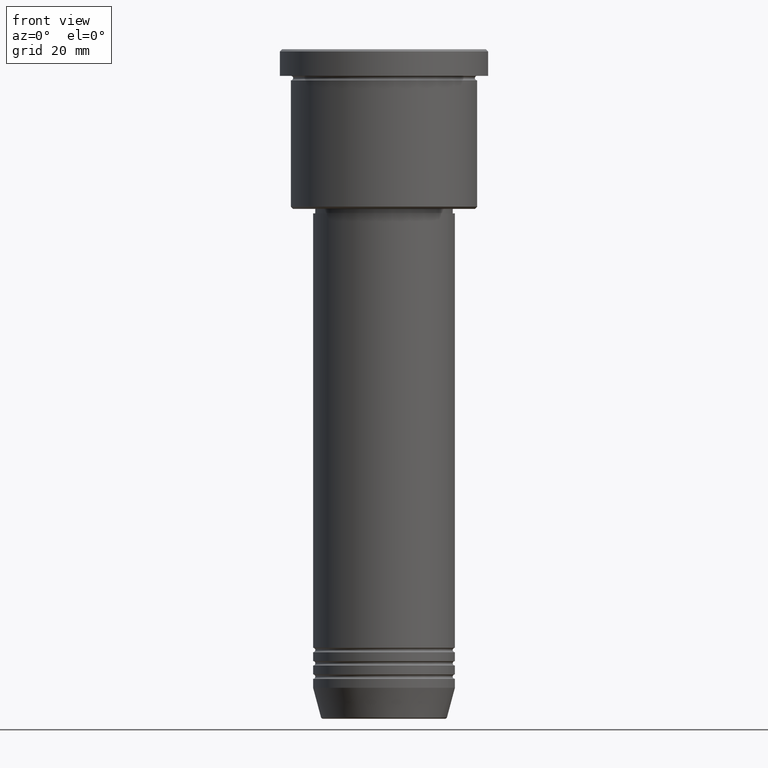
[diagram: clean part render]
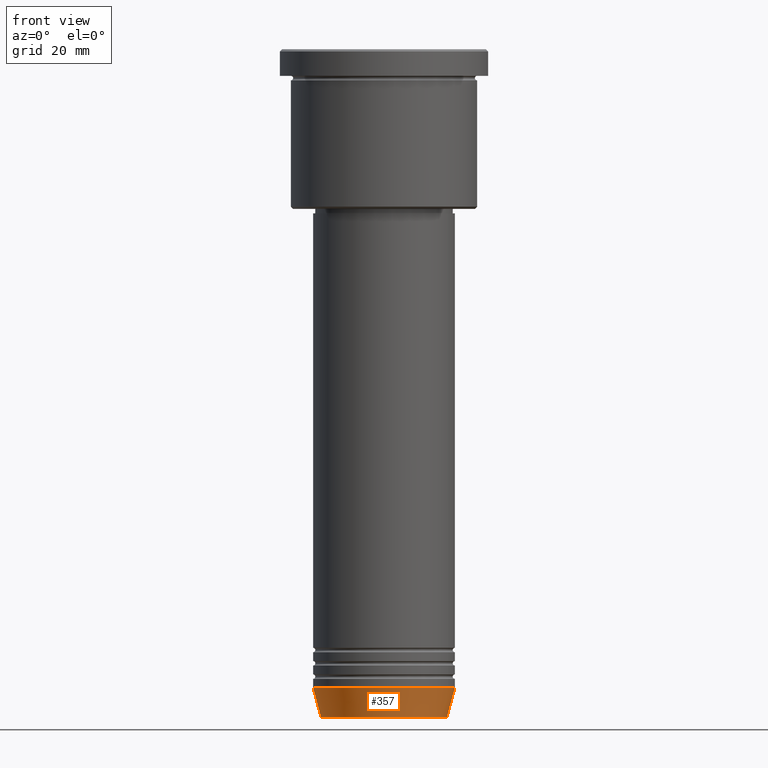
[diagram: same view with one face highlighted and labeled with its STEP entity id]
A machine part, front view. The second image highlights one B-rep face of the part: STEP entity #357.
In plain terms, the highlighted conical surface has half-angle 15 deg.
Its self-contained STEP definition (entity closure, byte-faithful):
#18 = EDGE_LOOP ( 'NONE', ( #370, #860, #1164, #491 ) ) ;
#34 = CARTESIAN_POINT ( 'NONE',  ( 0.000000000000000000, 0.000000000000000000, -144.0000000000000284 ) ) ;
#64 = CIRCLE ( 'NONE', #240, 16.00000000000000000 ) ;
#90 = CARTESIAN_POINT ( 'NONE',  ( -16.00000000000000000, 1.959434878635765131E-15, -144.0000000000000284 ) ) ;
#117 = VECTOR ( 'NONE', #190, 1000.000000000000000 ) ;
#172 = CARTESIAN_POINT ( 'NONE',  ( 0.000000000000000000, 0.000000000000000000, -150.6294095225512706 ) ) ;
#190 = DIRECTION ( 'NONE',  ( 0.2588190451025209060, 0.000000000000000000, 0.9659258262890682012 ) ) ;
#195 = VERTEX_POINT ( 'NONE', #479 ) ;
#228 = CARTESIAN_POINT ( 'NONE',  ( -14.22365507213719305, 1.850665122131324126E-15, -150.6294095225512706 ) ) ;
#240 = AXIS2_PLACEMENT_3D ( 'NONE', #34, #779, #308 ) ;
#304 = EDGE_CURVE ( 'NONE', #681, #829, #454, .T. ) ;
#308 = DIRECTION ( 'NONE',  ( 1.000000000000000000, 0.000000000000000000, 0.000000000000000000 ) ) ;
#328 = CARTESIAN_POINT ( 'NONE',  ( 14.22365507213719305, 0.000000000000000000, -150.6294095225512706 ) ) ;
#357 = ADVANCED_FACE ( 'NONE', ( #419 ), #1021, .T. ) ;
#365 = EDGE_CURVE ( 'NONE', #829, #195, #64, .T. ) ;
#370 = ORIENTED_EDGE ( 'NONE', *, *, #304, .F. ) ;
#401 = DIRECTION ( 'NONE',  ( 1.000000000000000000, 0.000000000000000000, 0.000000000000000000 ) ) ;
#419 = FACE_OUTER_BOUND ( 'NONE', #18, .T. ) ;
#454 = LINE ( 'NONE', #1005, #1113 ) ;
#478 = VERTEX_POINT ( 'NONE', #328 ) ;
#479 = CARTESIAN_POINT ( 'NONE',  ( 16.00000000000000000, 0.000000000000000000, -144.0000000000000284 ) ) ;
#491 = ORIENTED_EDGE ( 'NONE', *, *, #365, .F. ) ;
#539 = DIRECTION ( 'NONE',  ( 1.000000000000000000, 0.000000000000000000, 0.000000000000000000 ) ) ;
#561 = EDGE_CURVE ( 'NONE', #681, #478, #843, .T. ) ;
#618 = CARTESIAN_POINT ( 'NONE',  ( 16.00000000000000000, 0.000000000000000000, -144.0000000000000284 ) ) ;
#663 = CARTESIAN_POINT ( 'NONE',  ( 0.000000000000000000, 0.000000000000000000, -144.0000000000000284 ) ) ;
#681 = VERTEX_POINT ( 'NONE', #228 ) ;
#731 = DIRECTION ( 'NONE',  ( -0.2588190451025209060, 3.169619151431766790E-17, 0.9659258262890682012 ) ) ;
#779 = DIRECTION ( 'NONE',  ( -0.000000000000000000, -0.000000000000000000, 1.000000000000000000 ) ) ;
#829 = VERTEX_POINT ( 'NONE', #90 ) ;
#842 = EDGE_CURVE ( 'NONE', #478, #195, #1169, .T. ) ;
#843 = CIRCLE ( 'NONE', #1003, 14.22365507213719305 ) ;
#853 = DIRECTION ( 'NONE',  ( -0.000000000000000000, -0.000000000000000000, 1.000000000000000000 ) ) ;
#860 = ORIENTED_EDGE ( 'NONE', *, *, #561, .T. ) ;
#900 = DIRECTION ( 'NONE',  ( -0.000000000000000000, -0.000000000000000000, 1.000000000000000000 ) ) ;
#981 = AXIS2_PLACEMENT_3D ( 'NONE', #663, #853, #401 ) ;
#1003 = AXIS2_PLACEMENT_3D ( 'NONE', #172, #900, #539 ) ;
#1005 = CARTESIAN_POINT ( 'NONE',  ( -16.00000000000000000, 1.959434878635765131E-15, -144.0000000000000284 ) ) ;
#1021 = CONICAL_SURFACE ( 'NONE', #981, 16.00000000000000000, 0.2617993877991495744 ) ;
#1113 = VECTOR ( 'NONE', #731, 1000.000000000000000 ) ;
#1164 = ORIENTED_EDGE ( 'NONE', *, *, #842, .T. ) ;
#1169 = LINE ( 'NONE', #618, #117 ) ;